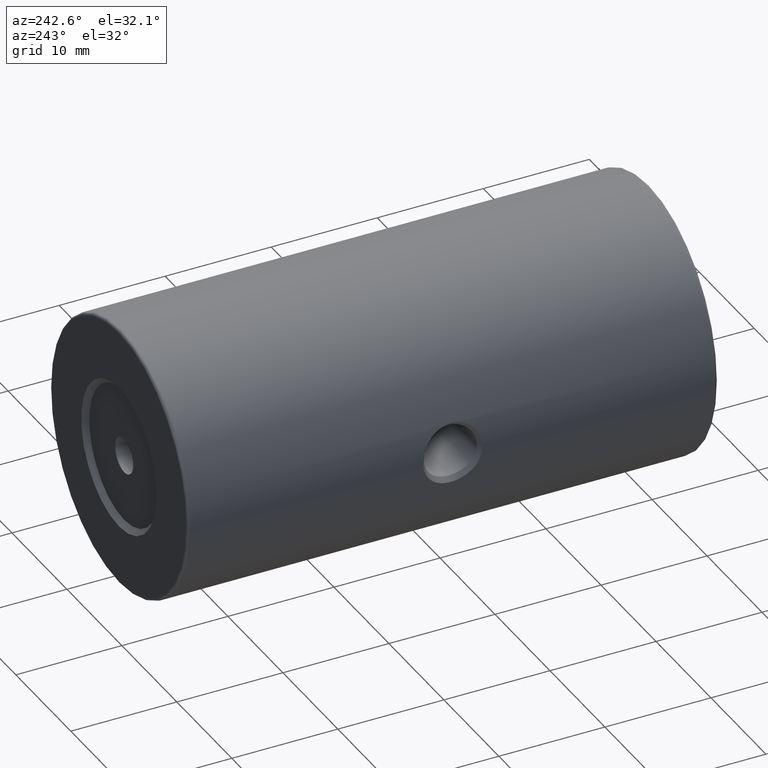
[diagram: clean part render]
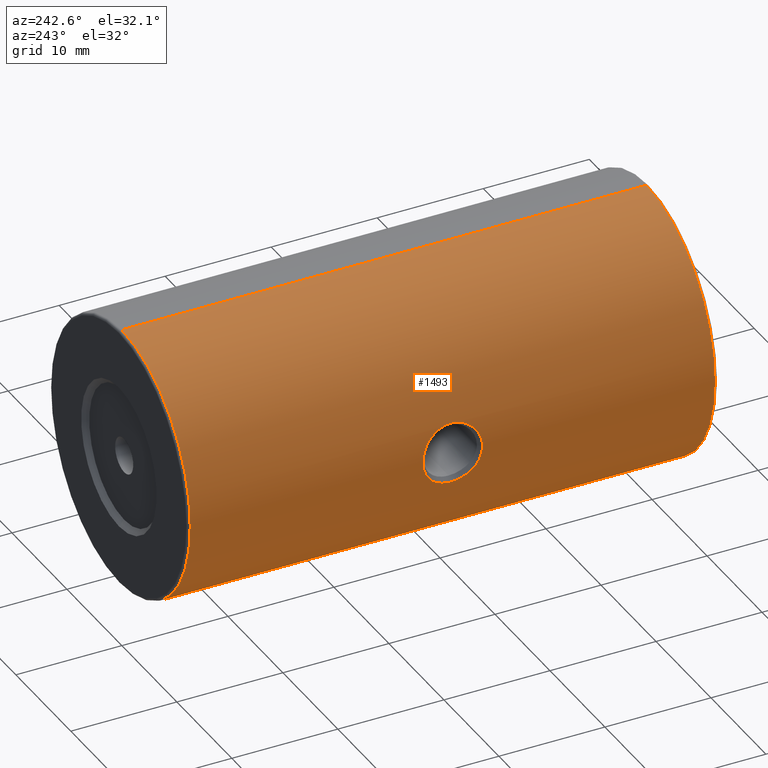
[diagram: same view with one face highlighted and labeled with its STEP entity id]
A machine part, auxiliary view. The second image highlights one B-rep face of the part: STEP entity #1493.
In plain terms, the highlighted cylindrical surface (partial cylindrical patch) has radius 12.5 mm, axis along (-0, -1, -0).
Its self-contained STEP definition (entity closure, byte-faithful):
#1 = CARTESIAN_POINT ( 'NONE',  ( -34.69691194386516742, 2.305978899521226033, 47.23996501531830461 ) ) ;
#5 = CARTESIAN_POINT ( 'NONE',  ( -34.98808031034209876, -1.341176413144948398, 50.66066995145062180 ) ) ;
#22 = CARTESIAN_POINT ( 'NONE',  ( -34.98275065808896045, -1.318488312186178790, 50.75447521940753148 ) ) ;
#101 = CARTESIAN_POINT ( 'NONE',  ( -35.00520183104453764, -1.413082124769267978, 50.00000000000000000 ) ) ;
#124 = VERTEX_POINT ( 'NONE', #1129 ) ;
#130 = CARTESIAN_POINT ( 'NONE',  ( -22.50520183104453409, -23.35174781523060972, 62.50000000000000000 ) ) ;
#149 = VERTEX_POINT ( 'NONE', #341 ) ;
#209 = AXIS2_PLACEMENT_3D ( 'NONE', #2866, #2106, #2072 ) ;
#210 = CARTESIAN_POINT ( 'NONE',  ( -34.66651604187034508, 1.768063399951688153, 47.10968654203913530 ) ) ;
#254 = EDGE_CURVE ( 'NONE', #124, #739, #258, .T. ) ;
#258 = CIRCLE ( 'NONE', #2602, 12.49999999999999645 ) ;
#259 = CARTESIAN_POINT ( 'NONE',  ( -34.78997005406738907, 3.114338606149197108, 47.68786276459744755 ) ) ;
#263 = CARTESIAN_POINT ( 'NONE',  ( -34.97029888078238002, -1.264562310690540814, 50.93798354388252392 ) ) ;
#312 = VECTOR ( 'NONE', #1685, 1000.000000000000000 ) ;
#341 = CARTESIAN_POINT ( 'NONE',  ( -22.50520183104453409, 26.14825218476939028, 62.50000000000000000 ) ) ;
#408 = ORIENTED_EDGE ( 'NONE', *, *, #1346, .T. ) ;
#455 = CARTESIAN_POINT ( 'NONE',  ( -34.74801352654727538, 2.806830232067530240, 52.52488523745059723 ) ) ;
#489 = CYLINDRICAL_SURFACE ( 'NONE', #1159, 12.49999999999999645 ) ;
#510 = CARTESIAN_POINT ( 'NONE',  ( -34.92002400583489674, 3.832124608321413106, 51.45923812920061380 ) ) ;
#524 = CARTESIAN_POINT ( 'NONE',  ( -34.68404829436390457, 2.129844607498108111, 47.18447624009378671 ) ) ;
#580 = CARTESIAN_POINT ( 'NONE',  ( -35.00520183104453764, -1.413082124769267978, 50.00000000000000000 ) ) ;
#650 = EDGE_LOOP ( 'NONE', ( #408, #1568 ) ) ;
#662 = LINE ( 'NONE', #3041, #312 ) ;
#670 = ORIENTED_EDGE ( 'NONE', *, *, #1631, .T. ) ;
#717 = CARTESIAN_POINT ( 'NONE',  ( -34.94725856887605175, 3.958573559313079304, 51.20539725437844680 ) ) ;
#733 = CARTESIAN_POINT ( 'NONE',  ( -34.74827243126632226, -0.01252608454996768581, 52.52367520654295419 ) ) ;
#739 = VERTEX_POINT ( 'NONE', #130 ) ;
#747 = CARTESIAN_POINT ( 'NONE',  ( -34.97116716007145953, 4.065639543320880733, 49.06127516942770228 ) ) ;
#750 = CARTESIAN_POINT ( 'NONE',  ( -34.72905683929546683, 2.646135917275101335, 52.61400507397645043 ) ) ;
#769 = CARTESIAN_POINT ( 'NONE',  ( -34.93867267744897731, 3.919447845722323187, 51.29073167660468613 ) ) ;
#801 = CARTESIAN_POINT ( 'NONE',  ( -35.00520183104453764, -1.413082124769267978, 50.00000000000000000 ) ) ;
#896 = CARTESIAN_POINT ( 'NONE',  ( -34.92056304550112600, -1.039858968507667569, 48.53915210879907249 ) ) ;
#966 = CARTESIAN_POINT ( 'NONE',  ( -22.50520183104453409, 26.14825218476939028, 37.50000000000000711 ) ) ;
#971 = CARTESIAN_POINT ( 'NONE',  ( -34.74815230532115606, -0.01157353951462826089, 47.47574332327106816 ) ) ;
#982 = VECTOR ( 'NONE', #2902, 1000.000000000000000 ) ;
#1058 = CARTESIAN_POINT ( 'NONE',  ( -22.50520183104453409, 26.39825218476939028, 37.50000000000000711 ) ) ;
#1077 = CARTESIAN_POINT ( 'NONE',  ( -34.66193446152058755, 1.214990703612318645, 47.09073003121878287 ) ) ;
#1129 = CARTESIAN_POINT ( 'NONE',  ( -22.50520183104453409, -23.35174781523060972, 37.50000000000000711 ) ) ;
#1159 = AXIS2_PLACEMENT_3D ( 'NONE', #1341, #2936, #1546 ) ;
#1162 = CARTESIAN_POINT ( 'NONE',  ( -35.00520183104453764, -1.413082089048368628, 49.61579498181180270 ) ) ;
#1243 = CARTESIAN_POINT ( 'NONE',  ( -34.67081540850636401, 1.856390161520020454, 52.87196965016466521 ) ) ;
#1257 = CARTESIAN_POINT ( 'NONE',  ( -34.66752058121688407, 1.766213776328080964, 52.88584409472475301 ) ) ;
#1275 = CARTESIAN_POINT ( 'NONE',  ( -34.87974277252411071, 3.646729404168977950, 48.21237859084615707 ) ) ;
#1278 = CARTESIAN_POINT ( 'NONE',  ( -34.87912024513034481, 3.630988285995093712, 51.77802314548132046 ) ) ;
#1326 = CARTESIAN_POINT ( 'NONE',  ( -34.81219287684091057, 3.255432286743134451, 47.80758469892378315 ) ) ;
#1341 = CARTESIAN_POINT ( 'NONE',  ( -22.50520183104453409, 26.39825218476939028, 50.00000000000000000 ) ) ;
#1346 = EDGE_CURVE ( 'NONE', #1607, #1889, #2513, .T. ) ;
#1389 = EDGE_CURVE ( 'NONE', #149, #1872, #3390, .T. ) ;
#1397 = CARTESIAN_POINT ( 'NONE',  ( -34.96325857829894801, -1.233718698004320213, 51.02694110184857124 ) ) ;
#1493 = ADVANCED_FACE ( 'NONE', ( #3198, #2598 ), #489, .T. ) ;
#1499 = CARTESIAN_POINT ( 'NONE',  ( -34.93943696048355463, -1.127055212630269310, 48.70724999349547346 ) ) ;
#1515 = CARTESIAN_POINT ( 'NONE',  ( -34.68386991630566030, 2.126930833236154506, 52.81629139461890077 ) ) ;
#1532 = CARTESIAN_POINT ( 'NONE',  ( -34.69672515563068060, 2.303875218722755136, 52.76087174921038780 ) ) ;
#1546 = DIRECTION ( 'NONE',  ( 0.0000000000000000000, 0.0000000000000000000, -1.000000000000000000 ) ) ;
#1549 = CARTESIAN_POINT ( 'NONE',  ( -34.79013651508778793, -0.3190703822771540632, 52.31129705553520637 ) ) ;
#1563 = CARTESIAN_POINT ( 'NONE',  ( -34.92365520087233222, 3.852890852562541824, 48.53098690627004430 ) ) ;
#1568 = ORIENTED_EDGE ( 'NONE', *, *, #2258, .T. ) ;
#1585 = CARTESIAN_POINT ( 'NONE',  ( -35.00080834476691649, -1.395005945087769872, 50.38049639795661250 ) ) ;
#1601 = CARTESIAN_POINT ( 'NONE',  ( -35.00524692301915053, 4.209770318075650941, 49.81270652709905988 ) ) ;
#1607 = VERTEX_POINT ( 'NONE', #801 ) ;
#1631 = EDGE_CURVE ( 'NONE', #1872, #124, #2918, .T. ) ;
#1685 = DIRECTION ( 'NONE',  ( -0.0000000000000000000, -1.000000000000000000, -0.0000000000000000000 ) ) ;
#1747 = CARTESIAN_POINT ( 'NONE',  ( -34.85689439158285552, -0.7179281710238751835, 48.07538743316563767 ) ) ;
#1766 = CARTESIAN_POINT ( 'NONE',  ( -34.81205133254194095, 3.254567286170582552, 52.19320050888283191 ) ) ;
#1794 = CARTESIAN_POINT ( 'NONE',  ( -34.68408990658818425, 0.6657967389098847777, 47.18465315096346302 ) ) ;
#1814 = CARTESIAN_POINT ( 'NONE',  ( -34.72924432496668601, 0.1489096346318751207, 52.61311078802900454 ) ) ;
#1834 = CARTESIAN_POINT ( 'NONE',  ( -34.92091958336808943, -1.041568019898963859, 51.45788940177168058 ) ) ;
#1847 = CARTESIAN_POINT ( 'NONE',  ( -35.00520147448047226, 4.209585013874985293, 50.00298564924415956 ) ) ;
#1867 = CARTESIAN_POINT ( 'NONE',  ( -34.72905173131964318, 2.645954824936260330, 47.38598351052176838 ) ) ;
#1872 = VERTEX_POINT ( 'NONE', #966 ) ;
#1889 = VERTEX_POINT ( 'NONE', #2002 ) ;
#1927 = B_SPLINE_CURVE_WITH_KNOTS ( 'NONE', 3,
 ( #2043, #2852, #2906, #717, #769, #510, #3394, #1278, #2341, #1766, #2619, #455, #750, #1532, #1515, #1243, #1257, #3170, #3118, #2836, #2325, #2059, #3134, #1814, #733, #1549, #2359, #2601, #3428, #1834, #2396, #1397, #263, #22, #5, #1585, #2183, #580 ),
 .UNSPECIFIED., .F., .F.,
 ( 4, 2, 2, 2, 2, 2, 2, 2, 2, 2, 2, 2, 2, 2, 2, 2, 2, 2, 4 ),
 ( 0.5000000000000000000, 0.5624999999999974465, 0.5781249999999971134, 0.5937499999999966693, 0.6249999999999967804, 0.6562499999999968914, 0.6874999999999971134, 0.7187499999999972244, 0.7343749999999973355, 0.7499999999999975575, 0.7812499999999977796, 0.8124999999999980016, 0.8437499999999984457, 0.8749999999999986677, 0.9062499999999988898, 0.9374999999999992228, 0.9531249999999994449, 0.9687499999999995559, 1.000000000000000000 ),
 .UNSPECIFIED. ) ;
#1964 = CARTESIAN_POINT ( 'NONE',  ( -34.87939741778114922, -0.8359134743064486894, 48.22389352012680064 ) ) ;
#2002 = CARTESIAN_POINT ( 'NONE',  ( -35.00520147448047226, 4.209585013874985293, 50.00298564924415956 ) ) ;
#2009 = EDGE_CURVE ( 'NONE', #149, #739, #662, .T. ) ;
#2040 = CARTESIAN_POINT ( 'NONE',  ( -34.72889004346956909, 0.1521183056322240601, 47.38523661628921246 ) ) ;
#2043 = CARTESIAN_POINT ( 'NONE',  ( -35.00520147448047226, 4.209585013874985293, 50.00298564924415956 ) ) ;
#2059 = CARTESIAN_POINT ( 'NONE',  ( -34.68406788086937809, 0.6663276252034460168, 52.81543937149056944 ) ) ;
#2072 = DIRECTION ( 'NONE',  ( 0.0000000000000000000, 0.0000000000000000000, 1.000000000000000000 ) ) ;
#2106 = DIRECTION ( 'NONE',  ( -0.0000000000000000000, -1.000000000000000000, -0.0000000000000000000 ) ) ;
#2183 = CARTESIAN_POINT ( 'NONE',  ( -35.00520183104454475, -1.413082142476737690, 50.19045706908683258 ) ) ;
#2184 = EDGE_LOOP ( 'NONE', ( #2397, #2431, #670, #2464 ) ) ;
#2226 = CARTESIAN_POINT ( 'NONE',  ( -34.98691299261884780, -1.339639162847731768, 49.23677669519164368 ) ) ;
#2258 = EDGE_CURVE ( 'NONE', #1889, #1607, #1927, .T. ) ;
#2307 = CARTESIAN_POINT ( 'NONE',  ( -34.79001590680987732, -0.3182597614011934417, 47.68806332061663511 ) ) ;
#2325 = CARTESIAN_POINT ( 'NONE',  ( -34.66652474597601241, 1.028189448968021003, 52.89027716194796369 ) ) ;
#2341 = CARTESIAN_POINT ( 'NONE',  ( -34.85705643049907110, 3.515358686858446990, 51.92363226179138991 ) ) ;
#2359 = CARTESIAN_POINT ( 'NONE',  ( -34.81267991288403607, -0.4618486555673572691, 52.18960616396354624 ) ) ;
#2396 = CARTESIAN_POINT ( 'NONE',  ( -34.93964974344269336, -1.128013625746519200, 51.29060020601472303 ) ) ;
#2397 = ORIENTED_EDGE ( 'NONE', *, *, #2009, .F. ) ;
#2431 = ORIENTED_EDGE ( 'NONE', *, *, #1389, .T. ) ;
#2464 = ORIENTED_EDGE ( 'NONE', *, *, #254, .T. ) ;
#2482 = DIRECTION ( 'NONE',  ( 0.0000000000000000000, 0.0000000000000000000, 1.000000000000000000 ) ) ;
#2513 = B_SPLINE_CURVE_WITH_KNOTS ( 'NONE', 3,
 ( #101, #1162, #2226, #1499, #896, #1964, #1747, #2816, #2307, #971, #2040, #3115, #1794, #3213, #1077, #3166, #210, #524, #1, #1867, #3147, #259, #1326, #1275, #1563, #747, #3406, #2885, #1601, #1847 ),
 .UNSPECIFIED., .F., .F.,
 ( 4, 2, 2, 2, 2, 2, 2, 2, 2, 2, 2, 2, 2, 2, 4 ),
 ( 0.0000000000000000000, 0.06249999999999875100, 0.09374999999999865385, 0.1249999999999985567, 0.1562499999999984457, 0.1874999999999983624, 0.2187499999999982514, 0.2499999999999981681, 0.2812499999999980571, 0.3124999999999978906, 0.3437499999999977796, 0.3749999999999976685, 0.4374999999999983347, 0.4687499999999991673, 0.5000000000000000000 ),
 .UNSPECIFIED. ) ;
#2598 = FACE_BOUND ( 'NONE', #650, .T. ) ;
#2601 = CARTESIAN_POINT ( 'NONE',  ( -34.85728882726067468, -0.7200549649273034758, 51.92206626476153275 ) ) ;
#2602 = AXIS2_PLACEMENT_3D ( 'NONE', #2959, #2978, #2482 ) ;
#2619 = CARTESIAN_POINT ( 'NONE',  ( -34.78950233568572514, 3.111229001386762505, 52.31461547249365651 ) ) ;
#2816 = CARTESIAN_POINT ( 'NONE',  ( -34.81216474024146379, -0.4587072315864541006, 47.80748851904365893 ) ) ;
#2836 = CARTESIAN_POINT ( 'NONE',  ( -34.66195746431353797, 1.211812476570045094, 52.90917384922276057 ) ) ;
#2852 = CARTESIAN_POINT ( 'NONE',  ( -35.00511057740313703, 4.209214405473659326, 50.38354389353439444 ) ) ;
#2866 = CARTESIAN_POINT ( 'NONE',  ( -22.50520183104453409, 26.14825218476939028, 50.00000000000000000 ) ) ;
#2885 = CARTESIAN_POINT ( 'NONE',  ( -35.00086437888765545, 4.191749029188182263, 49.62049296381185570 ) ) ;
#2902 = DIRECTION ( 'NONE',  ( -0.0000000000000000000, -1.000000000000000000, -0.0000000000000000000 ) ) ;
#2906 = CARTESIAN_POINT ( 'NONE',  ( -34.98663707285406588, 4.134943201907619326, 50.76675213532432451 ) ) ;
#2918 = LINE ( 'NONE', #1058, #982 ) ;
#2936 = DIRECTION ( 'NONE',  ( -0.0000000000000000000, -1.000000000000000000, -0.0000000000000000000 ) ) ;
#2959 = CARTESIAN_POINT ( 'NONE',  ( -22.50520183104453409, -23.35174781523060972, 50.00000000000000000 ) ) ;
#2978 = DIRECTION ( 'NONE',  ( 0.0000000000000000000, 1.000000000000000000, 0.0000000000000000000 ) ) ;
#3041 = CARTESIAN_POINT ( 'NONE',  ( -22.50520183104453409, 26.39825218476939028, 62.50000000000000000 ) ) ;
#3115 = CARTESIAN_POINT ( 'NONE',  ( -34.69688201949648487, 0.4909844491419214085, 47.23984144479318559 ) ) ;
#3118 = CARTESIAN_POINT ( 'NONE',  ( -34.66191919043988889, 1.488437803988805541, 52.90933378057249570 ) ) ;
#3134 = CARTESIAN_POINT ( 'NONE',  ( -34.69719134326540910, 0.4871785545118459404, 52.75879586371014085 ) ) ;
#3147 = CARTESIAN_POINT ( 'NONE',  ( -34.74847621066366798, 2.810539836545145498, 47.47735429477528868 ) ) ;
#3166 = CARTESIAN_POINT ( 'NONE',  ( -34.66192908598775091, 1.582225631725972192, 47.09070756900332100 ) ) ;
#3170 = CARTESIAN_POINT ( 'NONE',  ( -34.66304078550319900, 1.581811714282045145, 52.90465927043068461 ) ) ;
#3198 = FACE_OUTER_BOUND ( 'NONE', #2184, .T. ) ;
#3213 = CARTESIAN_POINT ( 'NONE',  ( -34.66645419303000608, 1.029721679353733599, 47.10942330579133142 ) ) ;
#3390 = CIRCLE ( 'NONE', #209, 12.49999999999999645 ) ;
#3394 = CARTESIAN_POINT ( 'NONE',  ( -34.91000489703897358, 3.784083020720671264, 51.54180631078445884 ) ) ;
#3406 = CARTESIAN_POINT ( 'NONE',  ( -34.98371482564073887, 4.119216514434780763, 49.24348063886031923 ) ) ;
#3428 = CARTESIAN_POINT ( 'NONE',  ( -34.87963477421217817, -0.8371459404747930710, 51.77451349620337595 ) ) ;